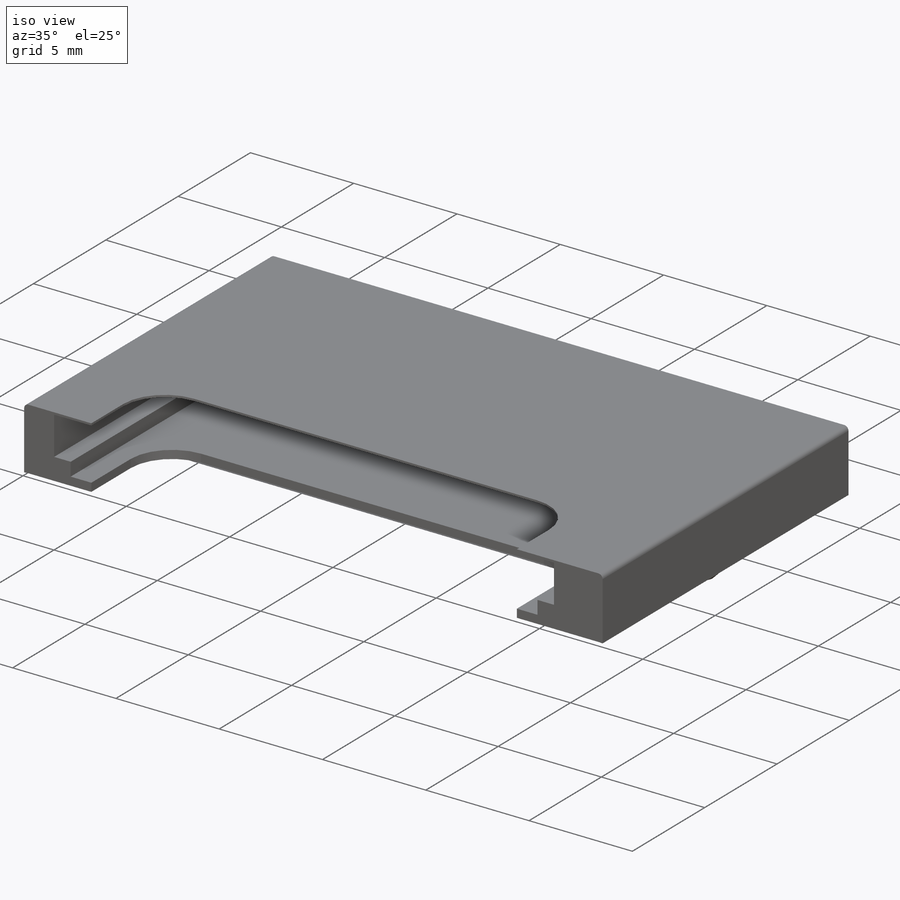
[diagram: iso view]
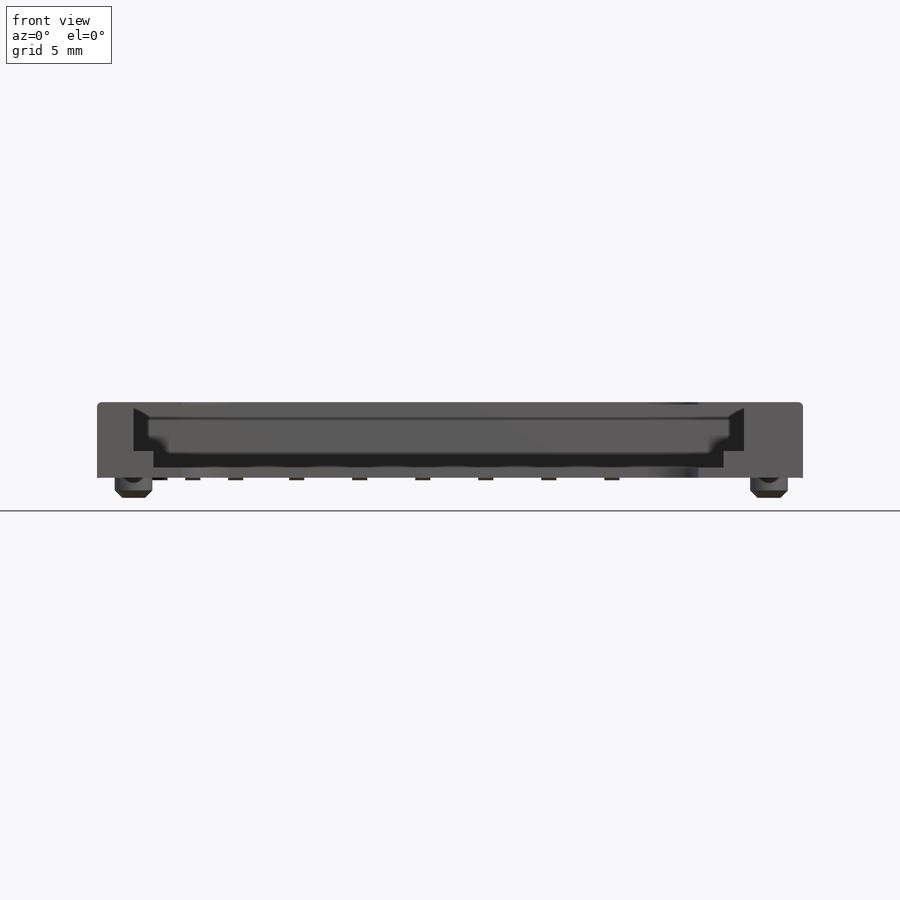
[diagram: front view]
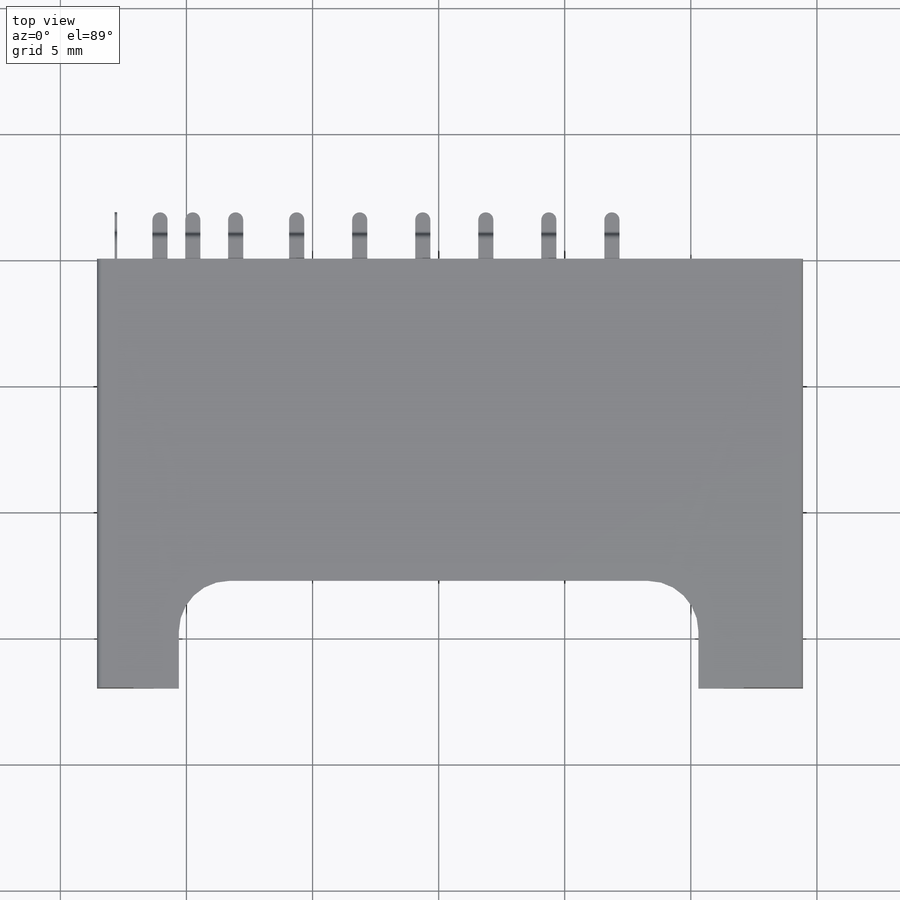
[diagram: top view]
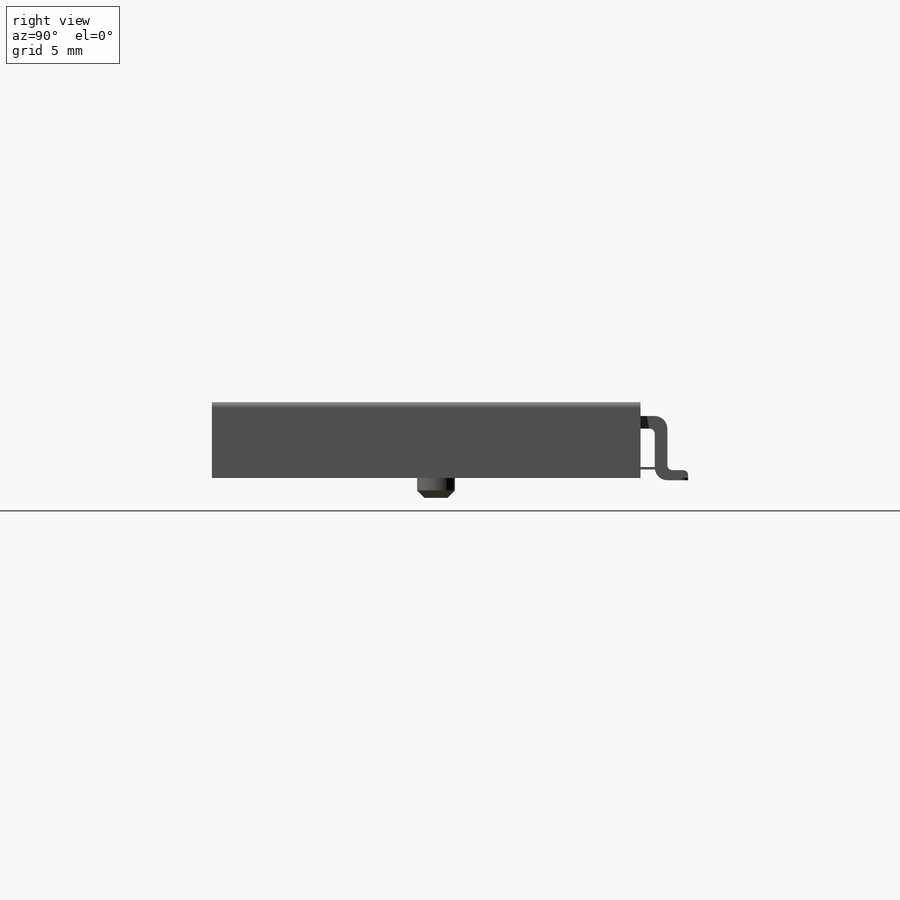
[diagram: right view]
SOLIDWORKS PART (.sldprt)
format: sldprt  version: not decoded by parser v0  size: 1,933,824 bytes
history: native  units: mm
features: sketch x27, sheet_metal_op x9, cut_extrude x8, plane x7, extrude x6, chamfer x4, pattern_linear x4, fillet x3, material x1 + 7 further entries (+8 scaffold rows collapsed)
feature tree (84):
  scaffold x8  (default folders/planes/origin — collapsed)
  material  "Material <not specified>"
  "Элемент списка вырезов2"
  "Элемент списка вырезов3"
  "Cut-List-Item1"
  plane  "Спереди"
  plane  "Сверху"
  plane  "Справа"
  plane  "Плоскость2"  Offset=5.63mm
  plane  "Плоскость3"  Offset=12.85mm
  plane  "Плоскость5"  Offset=28mm
  plane  "Плоскость4"  Offset=21.5mm
  sketch  "Эскиз5"  dims[c1.D1=28.0mm c1.D2=2.9mm c1.D3=28.0mm c2.D1=13.45mm c2.D3=14.35mm c2.D4=27.96mm]
  extrude  "тело_пластик"  Depth=29.2mm
  sketch  "Эскиз6"  dims[c1.D1=24.5mm c1.D2=1.0mm c1.D3=1.0mm c1.D4=0.1mm c1.D5=2.5mm c1.D6=2.5mm c1.D7=1.85mm c2.D1=24.2mm c2.D8=24.5mm c2.D3=1.0mm c3.D1=12.1mm c3.D3=12.1mm c3.D2=22.6mm]
  cut_extrude  "профиль карты"  Depth=28mm
  sketch  "Эскиз39"  dims[c1.D4=2.0mm c1.D1=20.6mm c1.D2=13.0mm c1.D3=4.2mm c1.D5=9.3mm c2.D3=10.3mm]
  cut_extrude  "вырез_пластик"  Depth=0.5mm
  sketch  "Эскиз41"  dims[D1=1.1mm D2=12.65mm]
  cut_extrude  "вырез_под_ножку_верт"  Depth=0.1mm
  sketch  "Эскиз42"  dims[D1=1.0mm]
  cut_extrude  "вырез_под_ножку_гор"  Depth=0.1mm
  sketch  "Эскиз13"  dims[c1.D1=~1.074768mm c1.D2=1.5mm c2.D1=25.2mm c2.D2=12.1mm c2.D3=21.2mm c2.D4=8.1mm c3.D2=12.1mm]
  extrude  "ножки_пластик"  Depth=0.8mm
  sketch  "Эскиз72"  dims[D1=0.6mm D2=1.1mm]
  cut_extrude  "Вырез-Вытянуть10"  Depth=0.1mm
  sketch  "Эскиз73"  dims[D1=0.8mm]
  cut_extrude  "Вырез-Вытянуть11"  Depth=0.1mm
  sketch  "Эскиз74"  dims[D1=1.0mm D2=0.5mm]
  extrude  "Бобышка-Вытянуть14"  Depth=0.5mm
  fillet  "Скругление1"  Radius=0.3mm
  chamfer  "Фаска_пластик1"  Distance=0.5mm Angle=45deg
  fillet  "Фаска_пластик_2"  Radius=0.35mm
  fillet  "Фаска_ножек"  Radius=0.3mm
  sheet_metal_op  "Листовой металл2"
  sketch  "Эскиз30"  dims[D1=2.2mm D2=27.01mm]
  chamfer  "Листовой металл5"  Distance=0.1mm Angle=11.459156deg Толщина=0.1mm
  sheet_metal_op  "обжимка_сталь"
  sketch  "Эскиз35"  dims[c1.D1=0.1mm c1.D4=~1570.796327mm c1.D5=1.0 c1.D8=~0.002865deg c1.D9=~0.002865deg c2.D1=0.1mm c2.D2=~28.64789deg c2.D3=0.0deg c2.D6=10.0mm c2.D7=3.01mm c2.правый_край_обжимки=0.0]
  sketch  "Эскиз38"
  sheet_metal_op  "EdgeBend2"
  sketch  "Эскиз8"  dims[c1.D4=2.0mm c1.D3=1.0mm c1.D1=20.6mm c1.D2=13.0mm c2.D3=4.2mm c2.D5=10.3mm]
  cut_extrude  "вырез_в_обжимке"  Depth=0.1mm
  sketch  "Эскиз14"  dims[c1.D1=1.9mm c1.D2=0.1mm c2.D1=0.3mm c2.D2=0.3mm c2.D5=0.1mm c2.D6=1.0mm c2.D7=0.1mm]
  extrude  "скругление_вывода"  Depth=0.3mm
  pattern_linear  "Линейный массив1"  Count1=6 Count2=1 Spacing1=2.5mm Spacing2=50mm
  pattern_linear  "Линейный массив2"  Count1=2 Count2=1 Spacing1=2.42mm Spacing2=50mm
  pattern_linear  "Линейный массив3"  Count1=2 Count2=1 Spacing1=4.12mm Spacing2=50mm
  pattern_linear  "Линейный массив4"  Count1=2 Count2=1 Spacing1=5.42mm Spacing2=50mm
  sketch  "Эскиз20"  dims[c1.D1=0.5mm c1.D2=0.2mm c1.D3=0.2mm c2.D1=0.5mm c2.D2=~0.574335mm c2.D4=0.5mm c2.D5=0.5mm c2.D6=0.4mm c2.D7=0.1mm]
  extrude  "Вывод_CD"  Depth=0.1mm
  sketch  "Эскиз71"  dims[c1.D5=0.1mm c1.D1=14.4mm c1.D2=0.2mm c1.D3=0.1mm c1.D4=0.5mm c2.D5=~0.349653mm c2.D6=1.2mm]
  extrude  "Вывод_GND"  Depth=0.05mm
  sketch  "Эскиз28"  dims[c1.D3=0.1mm c1.D1=0.8mm c1.D2=0.7mm c2.D3=1.0mm c2.D4=0.7mm c2.D1=0.7mm c2.D2=0.7mm c3.D1=0.1mm c3.D4=0.7mm c4.D1=1.0mm c4.D4=12.7mm c4.D5=0.1mm c5.D4=12.7mm c5.D1=1.0mm c5.D6=~0.908325mm c5.D2=0.7mm c5.D3=~0.191943mm c6.D6=0.8mm]
  chamfer  "Листовой металл4"  Distance=0mm Angle=11.459156deg
  sheet_metal_op  "Базовая кромка4"  Ребро-кромка3=0
  sketch  "Эскиз48"
  sheet_metal_op  "EdgeBend3"  Ребро-кромка4=0
  sketch  "Эскиз53"
  sheet_metal_op  "EdgeBend4"
  sketch  "Эскиз59"  dims[c1.D3=0.1mm c1.D1=0.8mm c1.D2=0.7mm c2.D3=1.0mm c2.D4=0.7mm c2.D1=0.7mm c2.D2=0.7mm c3.D1=0.1mm c3.D4=0.7mm c4.D1=1.0mm c4.D4=12.7mm c4.D5=0.1mm c5.D4=12.7mm c5.D1=1.0mm c5.D6=~0.908325mm c5.D2=0.7mm c5.D3=~0.191943mm c6.D6=0.8mm c6.D4=0.65mm c6.D5=0.65mm c7.D4=0.1mm c7.D5=0.65mm]
  chamfer  "Листовой металл6"  Distance=0.05mm Angle=11.459156deg
  sheet_metal_op  "Базовая кромка5"  Ребро-кромка5=0
  sketch  "Эскиз63"
  sheet_metal_op  "EdgeBend5"  Ребро-кромка6=0
  sketch  "Эскиз70"
  sheet_metal_op  "EdgeBend6"
  sketch  "Sketch1"  dims[D1=17.0mm]
  cut_extrude  "Cut-Extrude1"  [1 undecoded]
  "Развертка2"
  sketch  "Сгиб-Линии2"
  "Развертка4"
  sketch  "Сгиб-Линии4"
  "Развертка5"
  sketch  "Сгиб-Линии5"
  "Развертка6"
  sketch  "Сгиб-Линии6"
decode coverage: 46 of 61 modeling features carry decoded parameters; 7 rows unclassified (native names shown)
note: ~ marks probable driven/reference dimensions
note: 1 parameter value undecoded
note: suppression state not decoded; provenance and decode notes live in map.json
